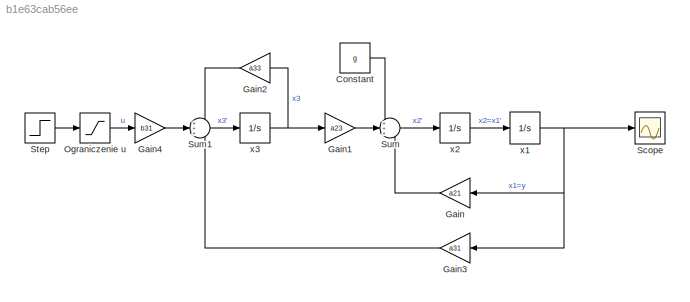
MODEL slx_b1e63cab56ee
KIND model
CONFIG AbsTol = auto
CONFIG EnableMultiTasking = off
CONFIG FixedStep = auto
CONFIG MaxStep = auto
CONFIG MinStep = auto
CONFIG RelTol = 1e-3
CONFIG SampleTimeConstraint = Unconstrained
CONFIG SolverName = VariableStepAuto
CONFIG StartTime = 0.0
CONFIG StopTime = 1
BLOCK [Constant] Constant
  Value = g
BLOCK [Gain] Gain
  Gain = a21
  NameLocation = top
BLOCK [Gain] Gain1
  Gain = a23
BLOCK [Gain] Gain2
  Gain = a33
  NameLocation = top
BLOCK [Gain] Gain3
  Gain = a31
  NameLocation = top
BLOCK [Gain] Gain4
  Gain = b31
BLOCK [Saturate] Ograniczenie u
  LowerLimit = 0
  UpperLimit = 1
BLOCK [Scope] Scope
  Floating = off
  NumInputPorts = 1
  Ports = [1]
  ScopeSpecificationString = Simulink.scopes.TimeScopeBlockCfg('CurrentConfiguration', extmgr.ConfigurationSet(extmgr.Configuration('Core','General UI',true),extmgr.Configuration('Core','Source UI',true),extmgr.Configuration('Sources','WiredSimulink',true),extmgr.Configuration('Visuals','Time Domain',true,'SerializedDisplays',{struct('MinYLimReal','-0.0002','MaxYLimReal','0.0134','YLabelReal','','MinYLimMag','0.00000','MaxYLi...<+1394ch>
BLOCK [Step] Step
  SampleTime = 0
  Time = 0
BLOCK [Sum] Sum
  Inputs = +++
  Ports = [3, 1]
BLOCK [Sum] Sum1
  Inputs = +++
  Ports = [3, 1]
BLOCK [Integrator] x1
  InitialCondition = xd
  LimitOutput = on
  LowerSaturationLimit = 0
  Ports = [1, 1]
  UpperSaturationLimit = xd
BLOCK [Integrator] x2
  Ports = [1, 1]
BLOCK [Integrator] x3
  Ports = [1, 1]
LINE Constant:1 -> Sum:1
LINE Gain1:1 -> Sum:2
LINE Gain2:1 -> Sum1:1
LINE Gain3:1 -> Sum1:3
LINE Gain4:1 -> Sum1:2
LINE Gain:1 -> Sum:3
LINE Ograniczenie u:1 -> Gain4:1
LINE Step:1 -> Ograniczenie u:1
LINE Sum1:1 -> x3:1
LINE Sum:1 -> x2:1
NET x1:1 -> Gain3:1, Gain:1, Scope:1
LINE x2:1 -> x1:1
NET x3:1 -> Gain1:1, Gain2:1
note: NET lines group one-source signal fan-out (src -> all destinations, sorted); 1:1 wires keep LINE
